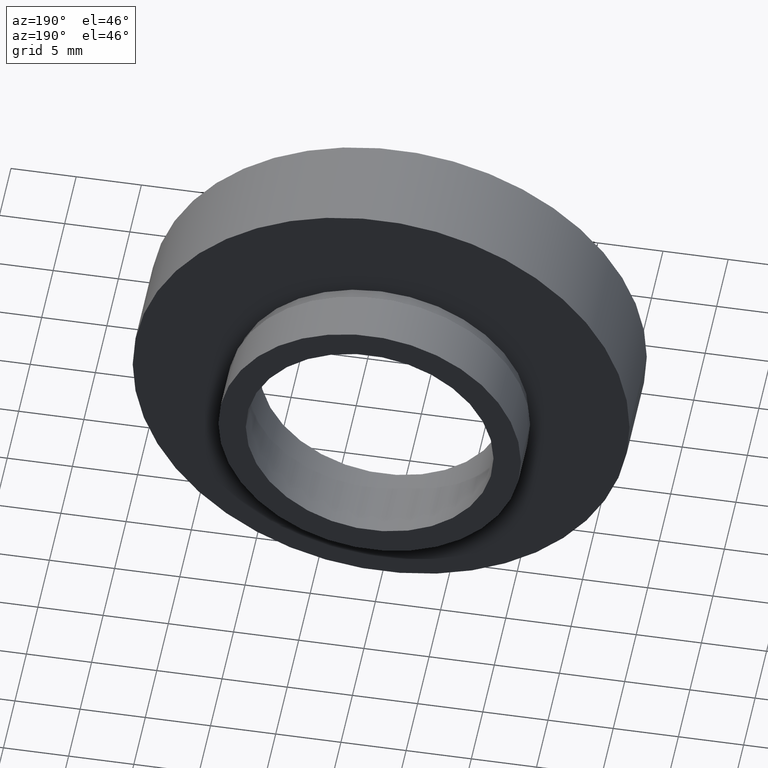
[diagram: clean part render]
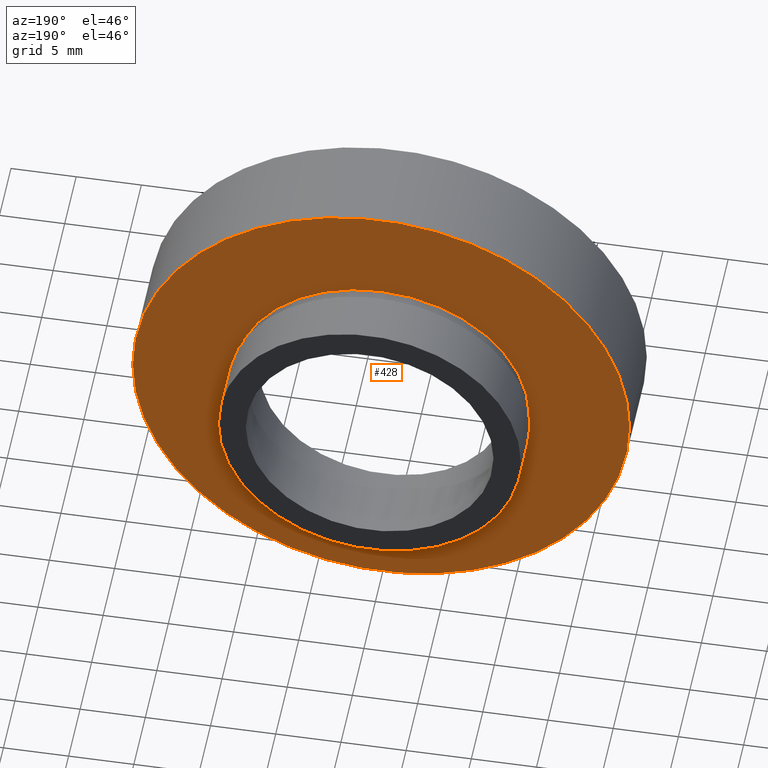
[diagram: same view with one face highlighted and labeled with its STEP entity id]
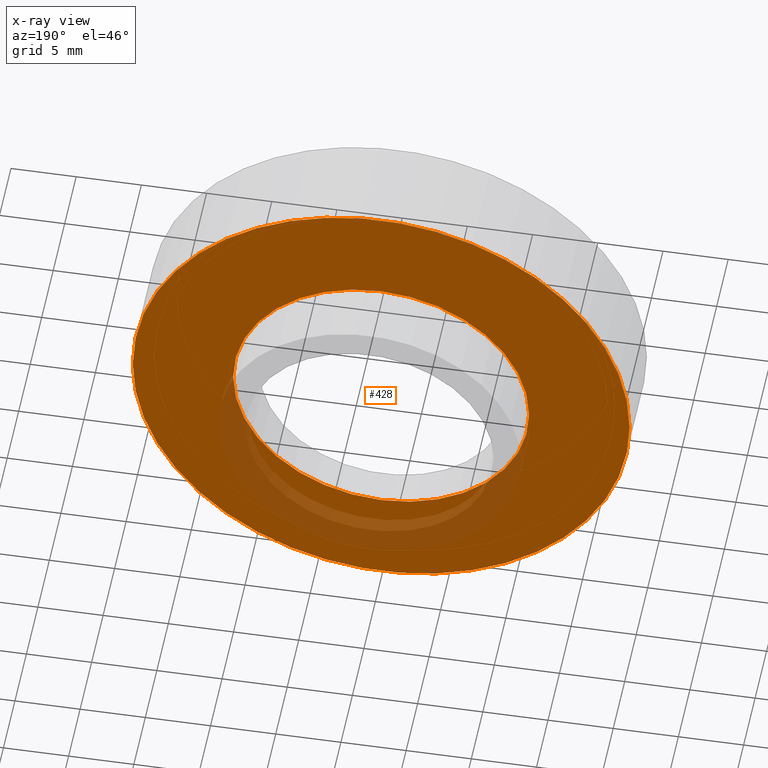
[diagram: x-ray of the same camera — body ghosted, the highlighted face saturated]
A machine part, auxiliary view. The second image highlights one B-rep face of the part: STEP entity #428.
The next image is the same camera in x-ray: the body ghosted, the highlighted face saturated — about 13% of this face is hidden behind the body in this view.
In plain terms, the highlighted planar face has unit normal (0, -1, 0).
Its self-contained STEP definition (entity closure, byte-faithful):
#4 = CARTESIAN_POINT ( 'NONE',  ( 1.149455719078123100E-015, 7.499999999999996400, 0.0000000000000000000 ) ) ;
#8 = CARTESIAN_POINT ( 'NONE',  ( 1.149455719078122700E-015, 7.499999999999998200, 0.0000000000000000000 ) ) ;
#10 = DIRECTION ( 'NONE',  ( -1.224646799147351000E-016, 1.000000000000000000, -0.0000000000000000000 ) ) ;
#12 = VERTEX_POINT ( 'NONE', #388 ) ;
#27 = DIRECTION ( 'NONE',  ( -1.224646799147351000E-016, 1.000000000000000000, -0.0000000000000000000 ) ) ;
#40 = VERTEX_POINT ( 'NONE', #374 ) ;
#45 = VERTEX_POINT ( 'NONE', #256 ) ;
#54 = FACE_BOUND ( 'NONE', #118, .T. ) ;
#56 = ORIENTED_EDGE ( 'NONE', *, *, #529, .F. ) ;
#61 = DIRECTION ( 'NONE',  ( -1.224646799147351000E-016, 1.000000000000000000, -0.0000000000000000000 ) ) ;
#69 = CIRCLE ( 'NONE', #85, 19.05000000000000100 ) ;
#85 = AXIS2_PLACEMENT_3D ( 'NONE', #243, #61, #260 ) ;
#93 = DIRECTION ( 'NONE',  ( -1.000000000000000000, -1.528390727732869900E-016, 0.0000000000000000000 ) ) ;
#118 = EDGE_LOOP ( 'NONE', ( #56, #523 ) ) ;
#173 = EDGE_LOOP ( 'NONE', ( #595, #440 ) ) ;
#175 = EDGE_CURVE ( 'NONE', #40, #545, #179, .T. ) ;
#179 = CIRCLE ( 'NONE', #279, 11.35000000000000000 ) ;
#190 = CIRCLE ( 'NONE', #417, 19.05000000000000100 ) ;
#192 = DIRECTION ( 'NONE',  ( 1.000000000000000000, 1.224646799147351000E-016, 0.0000000000000000000 ) ) ;
#199 = EDGE_CURVE ( 'NONE', #45, #12, #190, .T. ) ;
#201 = CARTESIAN_POINT ( 'NONE',  ( -11.34999999999999800, 7.499999999999994700, 0.0000000000000000000 ) ) ;
#224 = CARTESIAN_POINT ( 'NONE',  ( 11.35000000000000100, 7.499999999999997300, 0.0000000000000000000 ) ) ;
#234 = DIRECTION ( 'NONE',  ( 1.224646799147351000E-016, -1.000000000000000000, 0.0000000000000000000 ) ) ;
#243 = CARTESIAN_POINT ( 'NONE',  ( 1.149455719078122700E-015, 7.499999999999998200, 0.0000000000000000000 ) ) ;
#256 = CARTESIAN_POINT ( 'NONE',  ( 19.05000000000000100, 7.500000000000000900, 2.332952152375707600E-015 ) ) ;
#260 = DIRECTION ( 'NONE',  ( -1.000000000000000000, -1.365923996832131600E-016, 0.0000000000000000000 ) ) ;
#279 = AXIS2_PLACEMENT_3D ( 'NONE', #4, #618, #610 ) ;
#319 = FACE_OUTER_BOUND ( 'NONE', #173, .T. ) ;
#374 = CARTESIAN_POINT ( 'NONE',  ( 11.35000000000000100, 7.499999999999998200, 1.389974117032245900E-015 ) ) ;
#388 = CARTESIAN_POINT ( 'NONE',  ( -19.05000000000000100, 7.499999999999995600, 0.0000000000000000000 ) ) ;
#417 = AXIS2_PLACEMENT_3D ( 'NONE', #8, #10, #547 ) ;
#428 = ADVANCED_FACE ( 'NONE', ( #54, #319 ), #502, .F. ) ;
#440 = ORIENTED_EDGE ( 'NONE', *, *, #199, .T. ) ;
#502 = PLANE ( 'NONE',  #575 ) ;
#516 = AXIS2_PLACEMENT_3D ( 'NONE', #603, #27, #93 ) ;
#520 = CIRCLE ( 'NONE', #516, 11.35000000000000000 ) ;
#523 = ORIENTED_EDGE ( 'NONE', *, *, #175, .F. ) ;
#529 = EDGE_CURVE ( 'NONE', #545, #40, #520, .T. ) ;
#545 = VERTEX_POINT ( 'NONE', #201 ) ;
#547 = DIRECTION ( 'NONE',  ( -1.000000000000000000, -1.365923996832131600E-016, 0.0000000000000000000 ) ) ;
#575 = AXIS2_PLACEMENT_3D ( 'NONE', #224, #234, #192 ) ;
#588 = EDGE_CURVE ( 'NONE', #12, #45, #69, .T. ) ;
#595 = ORIENTED_EDGE ( 'NONE', *, *, #588, .T. ) ;
#603 = CARTESIAN_POINT ( 'NONE',  ( 1.149455719078123100E-015, 7.499999999999996400, 0.0000000000000000000 ) ) ;
#610 = DIRECTION ( 'NONE',  ( -1.000000000000000000, -1.528390727732869900E-016, 0.0000000000000000000 ) ) ;
#618 = DIRECTION ( 'NONE',  ( -1.224646799147351000E-016, 1.000000000000000000, -0.0000000000000000000 ) ) ;